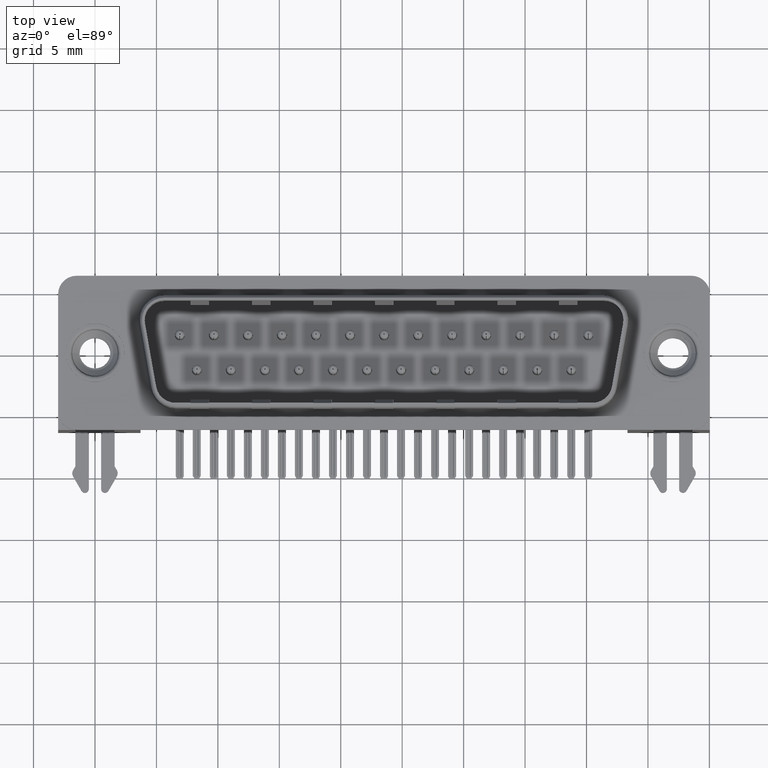
[diagram: clean part render]
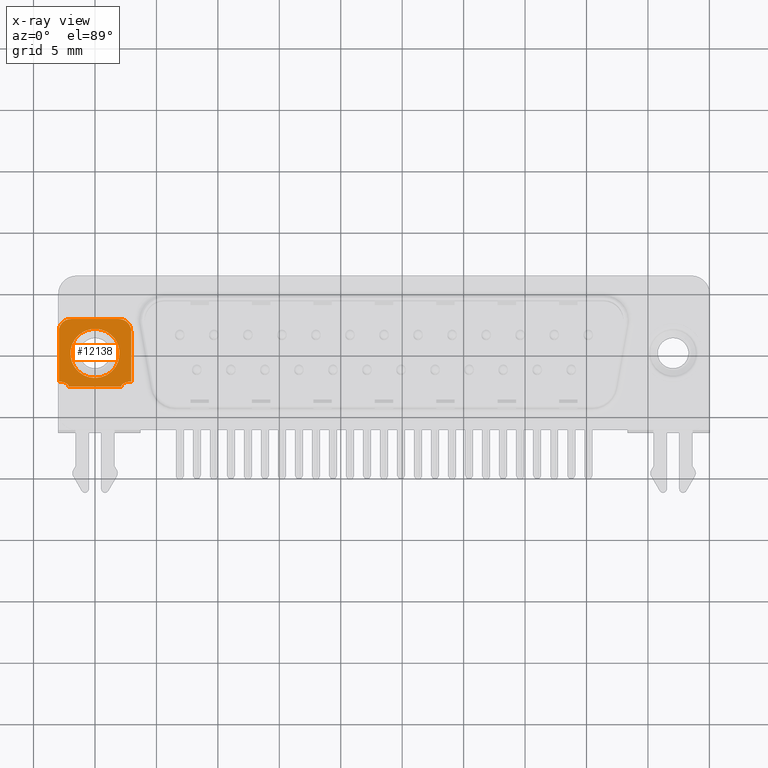
[diagram: x-ray — body ghosted, one internal face saturated and labeled with its STEP entity id]
A machine part, top view, then the same camera in x-ray: the body is ghosted and one INTERNAL B-rep face — a face not visible from any outside direction — is saturated and labeled: STEP entity #12138.
In plain terms, the highlighted planar face has unit normal (0, 0, 1).
Its self-contained STEP definition (entity closure, byte-faithful):
#67 = VECTOR ( 'NONE', #7267, 1000.000000000000000 ) ;
#176 = CARTESIAN_POINT ( 'NONE',  ( 2.149999999999999023, -2.600000000000000533, -2.500000000000000000 ) ) ;
#510 = CIRCLE ( 'NONE', #21648, 1.000000000000000000 ) ;
#513 = CARTESIAN_POINT ( 'NONE',  ( 2.149999999999999023, -2.699749197498457765, -2.500021533221965964 ) ) ;
#552 = CARTESIAN_POINT ( 'NONE',  ( -1.950000020320002969, 2.799999999999999822, -2.500000000000000000 ) ) ;
#680 = AXIS2_PLACEMENT_3D ( 'NONE', #11351, #4397, #15062 ) ;
#709 = ORIENTED_EDGE ( 'NONE', *, *, #13698, .F. ) ;
#790 = LINE ( 'NONE', #21920, #20694 ) ;
#1027 = CARTESIAN_POINT ( 'NONE',  ( 2.149999999999999023, -2.699749197498457765, -2.500021533221965964 ) ) ;
#1273 = CARTESIAN_POINT ( 'NONE',  ( 12.49499999999999922, 0.0000000000000000000, -2.500000000000000000 ) ) ;
#1447 = DIRECTION ( 'NONE',  ( 0.0000000000000000000, -1.000000000000000000, 0.0000000000000000000 ) ) ;
#1817 = CARTESIAN_POINT ( 'NONE',  ( -2.149999999999999023, -2.699749197498457765, -2.500021533221965520 ) ) ;
#1912 = CIRCLE ( 'NONE', #7847, 1.000000000000000222 ) ;
#2366 = CARTESIAN_POINT ( 'NONE',  ( 1.950000030607496049, 2.799999999999999378, -2.500000000000000000 ) ) ;
#2564 = CARTESIAN_POINT ( 'NONE',  ( -1.950000000000000400, 1.800000000000000266, -2.500000000000000000 ) ) ;
#3535 = VERTEX_POINT ( 'NONE', #12839 ) ;
#3879 = EDGE_LOOP ( 'NONE', ( #18962, #17203, #4746, #10575, #16759, #16352, #10925, #16777, #12691, #709 ) ) ;
#3965 = EDGE_LOOP ( 'NONE', ( #9523, #22405 ) ) ;
#3991 = VERTEX_POINT ( 'NONE', #2366 ) ;
#4397 = DIRECTION ( 'NONE',  ( -0.0000000000000000000, -0.0000000000000000000, -1.000000000000000000 ) ) ;
#4424 = CARTESIAN_POINT ( 'NONE',  ( 0.0000000000000000000, 0.0000000000000000000, -2.500000000000000000 ) ) ;
#4637 = VERTEX_POINT ( 'NONE', #15086 ) ;
#4712 = B_SPLINE_CURVE_WITH_KNOTS ( 'NONE', 3,
 ( #513, #9458, #16530, #16644 ),
 .UNSPECIFIED., .F., .F.,
 ( 4, 4 ),
 ( 0.0000000000000000000, 1.000000000000000000 ),
 .UNSPECIFIED. ) ;
#4746 = ORIENTED_EDGE ( 'NONE', *, *, #15106, .F. ) ;
#4754 = FACE_BOUND ( 'NONE', #3965, .T. ) ;
#5341 = VERTEX_POINT ( 'NONE', #18259 ) ;
#5501 = AXIS2_PLACEMENT_3D ( 'NONE', #4424, #11496, #22404 ) ;
#5841 = EDGE_CURVE ( 'NONE', #3535, #7843, #11406, .T. ) ;
#6030 = DIRECTION ( 'NONE',  ( 1.000000000000000000, 0.0000000000000000000, 0.0000000000000000000 ) ) ;
#6230 = AXIS2_PLACEMENT_3D ( 'NONE', #1273, #15429, #8358 ) ;
#6534 = VERTEX_POINT ( 'NONE', #19688 ) ;
#6710 = DIRECTION ( 'NONE',  ( -0.0000000000000000000, 1.000000000000000000, -0.0000000000000000000 ) ) ;
#6868 = DIRECTION ( 'NONE',  ( -0.0000000000000000000, -0.0000000000000000000, -1.000000000000000000 ) ) ;
#7267 = DIRECTION ( 'NONE',  ( 0.0000000000000000000, -1.000000000000000000, 0.0000000000000000000 ) ) ;
#7379 = LINE ( 'NONE', #16074, #13014 ) ;
#7581 = DIRECTION ( 'NONE',  ( 0.0000000000000000000, 0.0000000000000000000, -1.000000000000000000 ) ) ;
#7633 = CARTESIAN_POINT ( 'NONE',  ( -2.149999999999999023, -3.200000000000000178, -2.500000000000000000 ) ) ;
#7790 = CARTESIAN_POINT ( 'NONE',  ( -2.149999999999610445, -2.599999999999359268, -2.500000000000000000 ) ) ;
#7843 = VERTEX_POINT ( 'NONE', #16379 ) ;
#7847 = AXIS2_PLACEMENT_3D ( 'NONE', #2564, #7581, #21723 ) ;
#8022 = VERTEX_POINT ( 'NONE', #16821 ) ;
#8358 = DIRECTION ( 'NONE',  ( 0.0000000000000000000, -1.000000000000000000, 0.0000000000000000000 ) ) ;
#8653 = CARTESIAN_POINT ( 'NONE',  ( -2.867470740749999969, -3.296588642001999858, -2.500000000000000000 ) ) ;
#9356 = VERTEX_POINT ( 'NONE', #1027 ) ;
#9458 = CARTESIAN_POINT ( 'NONE',  ( 0.7166666666666657859, -2.699749211688915906, -2.500084843656781075 ) ) ;
#9523 = ORIENTED_EDGE ( 'NONE', *, *, #5841, .T. ) ;
#10019 = VERTEX_POINT ( 'NONE', #1817 ) ;
#10065 = LINE ( 'NONE', #15515, #19236 ) ;
#10095 = FACE_OUTER_BOUND ( 'NONE', #3879, .T. ) ;
#10468 = EDGE_CURVE ( 'NONE', #11952, #15442, #12851, .T. ) ;
#10492 = DIRECTION ( 'NONE',  ( 0.0000000000000000000, -1.000000000000000000, 0.0000000000000000000 ) ) ;
#10575 = ORIENTED_EDGE ( 'NONE', *, *, #12969, .F. ) ;
#10712 = CIRCLE ( 'NONE', #680, 1.000000000000000000 ) ;
#10925 = ORIENTED_EDGE ( 'NONE', *, *, #21786, .F. ) ;
#11351 = CARTESIAN_POINT ( 'NONE',  ( 1.950000000000000400, 1.800000000000000266, -2.500000000000000000 ) ) ;
#11406 = CIRCLE ( 'NONE', #5501, 2.000000000000000000 ) ;
#11496 = DIRECTION ( 'NONE',  ( -0.0000000000000000000, -0.0000000000000000000, -1.000000000000000000 ) ) ;
#11720 = AXIS2_PLACEMENT_3D ( 'NONE', #8653, #17353, #1447 ) ;
#11952 = VERTEX_POINT ( 'NONE', #7790 ) ;
#12138 = ADVANCED_FACE ( 'NONE', ( #10095, #4754 ), #17179, .T. ) ;
#12370 = VERTEX_POINT ( 'NONE', #552 ) ;
#12691 = ORIENTED_EDGE ( 'NONE', *, *, #13345, .F. ) ;
#12839 = CARTESIAN_POINT ( 'NONE',  ( 0.0000000000000000000, -2.000000000000000000, -2.500000000000000000 ) ) ;
#12851 = CIRCLE ( 'NONE', #11720, 1.000000000000000000 ) ;
#12941 = LINE ( 'NONE', #176, #67 ) ;
#12943 = EDGE_CURVE ( 'NONE', #12370, #3991, #790, .T. ) ;
#12969 = EDGE_CURVE ( 'NONE', #3991, #5341, #10712, .T. ) ;
#13014 = VECTOR ( 'NONE', #14452, 1000.000000000000000 ) ;
#13345 = EDGE_CURVE ( 'NONE', #10019, #11952, #22117, .T. ) ;
#13698 = EDGE_CURVE ( 'NONE', #9356, #10019, #4712, .T. ) ;
#14452 = DIRECTION ( 'NONE',  ( 0.0000000000000000000, -1.000000000000000000, 0.0000000000000000000 ) ) ;
#15062 = DIRECTION ( 'NONE',  ( 0.0000000000000000000, -1.000000000000000000, 0.0000000000000000000 ) ) ;
#15086 = CARTESIAN_POINT ( 'NONE',  ( 2.150000000000505729, -2.600000000000492584, -2.500000000000000000 ) ) ;
#15106 = EDGE_CURVE ( 'NONE', #5341, #8022, #7379, .T. ) ;
#15429 = DIRECTION ( 'NONE',  ( 0.0000000000000000000, 0.0000000000000000000, 1.000000000000000000 ) ) ;
#15442 = VERTEX_POINT ( 'NONE', #20186 ) ;
#15445 = CARTESIAN_POINT ( 'NONE',  ( 0.0000000000000000000, 0.0000000000000000000, -2.500000000000000000 ) ) ;
#15515 = CARTESIAN_POINT ( 'NONE',  ( -2.950000000000001066, 0.0000000000000000000, -2.500000000000000000 ) ) ;
#15554 = EDGE_CURVE ( 'NONE', #6534, #12370, #1912, .T. ) ;
#15674 = CIRCLE ( 'NONE', #16431, 2.000000000000000000 ) ;
#16074 = CARTESIAN_POINT ( 'NONE',  ( 2.950000000001000267, 0.0000000000000000000, -2.500000000000000000 ) ) ;
#16275 = EDGE_CURVE ( 'NONE', #4637, #9356, #12941, .T. ) ;
#16352 = ORIENTED_EDGE ( 'NONE', *, *, #15554, .F. ) ;
#16379 = CARTESIAN_POINT ( 'NONE',  ( 2.449293598294706414E-16, 2.000000000000000000, -2.500000000000000000 ) ) ;
#16431 = AXIS2_PLACEMENT_3D ( 'NONE', #15445, #6868, #17541 ) ;
#16530 = CARTESIAN_POINT ( 'NONE',  ( -0.7166666666666675622, -2.699749211688915906, -2.500084843656781075 ) ) ;
#16644 = CARTESIAN_POINT ( 'NONE',  ( -2.149999999999999023, -2.699749197498457765, -2.500021533221965520 ) ) ;
#16759 = ORIENTED_EDGE ( 'NONE', *, *, #12943, .F. ) ;
#16777 = ORIENTED_EDGE ( 'NONE', *, *, #10468, .F. ) ;
#16821 = CARTESIAN_POINT ( 'NONE',  ( 2.950000000001000267, -2.299999999999895017, -2.500000000000000000 ) ) ;
#17179 = PLANE ( 'NONE',  #6230 ) ;
#17203 = ORIENTED_EDGE ( 'NONE', *, *, #19893, .F. ) ;
#17353 = DIRECTION ( 'NONE',  ( 0.0000000000000000000, 0.0000000000000000000, 1.000000000000000000 ) ) ;
#17541 = DIRECTION ( 'NONE',  ( 1.000000000000000000, 0.0000000000000000000, 0.0000000000000000000 ) ) ;
#18259 = CARTESIAN_POINT ( 'NONE',  ( 2.950000000000494005, 1.800000000000000266, -2.500000000000000000 ) ) ;
#18962 = ORIENTED_EDGE ( 'NONE', *, *, #16275, .F. ) ;
#18998 = EDGE_CURVE ( 'NONE', #7843, #3535, #15674, .T. ) ;
#19066 = CARTESIAN_POINT ( 'NONE',  ( 2.867470740751998370, -3.296588642001999858, -2.500000000000000000 ) ) ;
#19229 = VECTOR ( 'NONE', #20019, 1000.000000000000000 ) ;
#19236 = VECTOR ( 'NONE', #6710, 1000.000000000000000 ) ;
#19303 = DIRECTION ( 'NONE',  ( 0.0000000000000000000, 0.0000000000000000000, 1.000000000000000000 ) ) ;
#19688 = CARTESIAN_POINT ( 'NONE',  ( -2.950000000000001066, 1.800000000000000044, -2.500000000000000000 ) ) ;
#19893 = EDGE_CURVE ( 'NONE', #8022, #4637, #510, .T. ) ;
#20019 = DIRECTION ( 'NONE',  ( 0.0000000000000000000, 1.000000000000000000, 0.0000000000000000000 ) ) ;
#20186 = CARTESIAN_POINT ( 'NONE',  ( -2.950000000000001066, -2.299999999999871481, -2.500000000000000000 ) ) ;
#20694 = VECTOR ( 'NONE', #6030, 1000.000000000000000 ) ;
#21648 = AXIS2_PLACEMENT_3D ( 'NONE', #19066, #19303, #10492 ) ;
#21723 = DIRECTION ( 'NONE',  ( 0.0000000000000000000, 1.000000000000000000, 0.0000000000000000000 ) ) ;
#21786 = EDGE_CURVE ( 'NONE', #15442, #6534, #10065, .T. ) ;
#21920 = CARTESIAN_POINT ( 'NONE',  ( 12.49499999999999922, 2.799999999999999822, -2.500000000000000000 ) ) ;
#22117 = LINE ( 'NONE', #7633, #19229 ) ;
#22404 = DIRECTION ( 'NONE',  ( 1.000000000000000000, 0.0000000000000000000, 0.0000000000000000000 ) ) ;
#22405 = ORIENTED_EDGE ( 'NONE', *, *, #18998, .T. ) ;